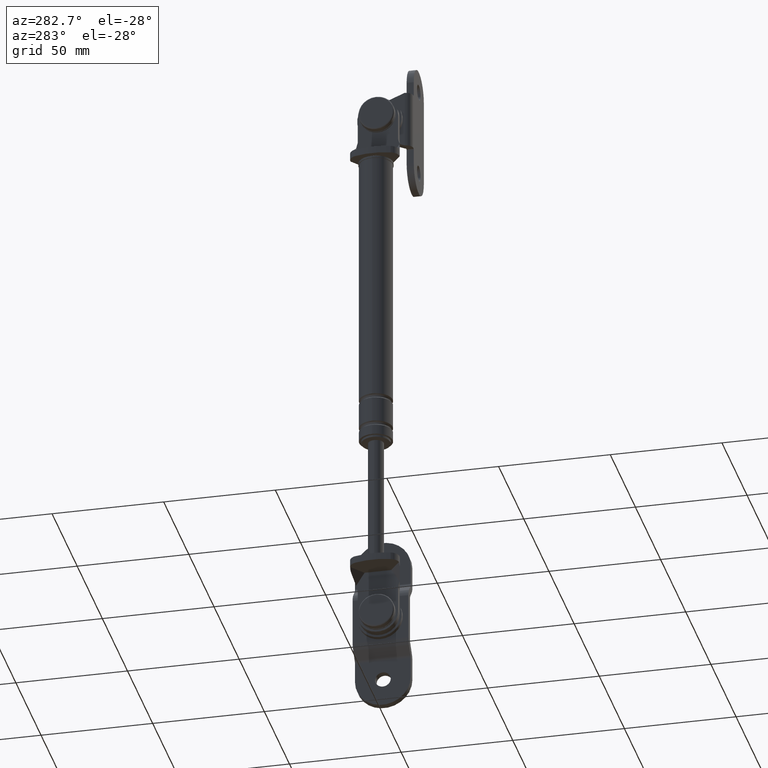
[diagram: clean part render]
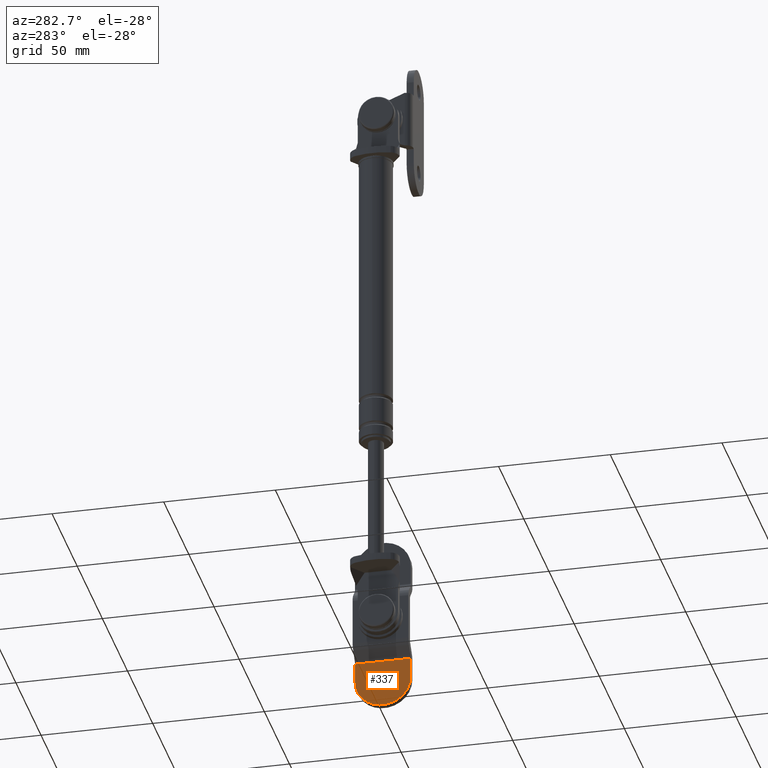
[diagram: same view with one face highlighted and labeled with its STEP entity id]
A machine part, auxiliary view. The second image highlights one B-rep face of the part: STEP entity #337.
In plain terms, the highlighted planar face has unit normal (1, 0, 0).
Its self-contained STEP definition (entity closure, byte-faithful):
#337=ADVANCED_FACE('',(#604,#605),#603,.F.);
#603=PLANE('',#2004);
#604=FACE_OUTER_BOUND('',#2005,.T.);
#605=FACE_BOUND('',#2006,.T.);
#2001=CARTESIAN_POINT('',(1.11590039666E+002,-1.60000000000E+000,1.77258453631E+002));
#2002=DIRECTION('',(0.00000000000E+000,-1.00000000000E+000,0.00000000000E+000));
#2003=DIRECTION('',(0.00000000000E+000,0.00000000000E+000,-1.00000000000E+000));
#2004=AXIS2_PLACEMENT_3D('',#2001,#2002,#2003);
#2005=EDGE_LOOP('',(#3038,#3039,#3040,#3041));
#2006=EDGE_LOOP('',(#3042,#3043));
#3038=ORIENTED_EDGE('',*,*,#3724,.F.);
#3039=ORIENTED_EDGE('',*,*,#3725,.T.);
#3040=ORIENTED_EDGE('',*,*,#3726,.F.);
#3041=ORIENTED_EDGE('',*,*,#3727,.F.);
#3042=ORIENTED_EDGE('',*,*,#3728,.T.);
#3043=ORIENTED_EDGE('',*,*,#3729,.T.);
#3724=EDGE_CURVE('',#4251,#4252,#4253,.T.);
#3725=EDGE_CURVE('',#4251,#4259,#4260,.T.);
#3726=EDGE_CURVE('',#4266,#4259,#4267,.T.);
#3727=EDGE_CURVE('',#4252,#4266,#4273,.T.);
#3728=EDGE_CURVE('',#4279,#4280,#4281,.T.);
#3729=EDGE_CURVE('',#4280,#4279,#4287,.T.);
#4251=VERTEX_POINT('',#6530);
#4252=VERTEX_POINT('',#6531);
#4253=CIRCLE('',#6535,1.25000000000E+001);
#4259=VERTEX_POINT('',#6536);
#4260=LINE('',#6537,#6538);
#4266=VERTEX_POINT('',#6540);
#4267=LINE('',#6541,#6542);
#4273=LINE('',#6544,#6545);
#4279=VERTEX_POINT('',#6547);
#4280=VERTEX_POINT('',#6548);
#4281=CIRCLE('',#6552,3.50000000000E+000);
#4287=CIRCLE('',#6556,3.50000000000E+000);
#6530=CARTESIAN_POINT('',(1.22748274395E+002,-1.60000000000E+000,1.49758453631E+002));
#6531=CARTESIAN_POINT('',(1.22748274395E+002,-1.60000000000E+000,1.74758453631E+002));
#6532=CARTESIAN_POINT('',(1.22748274395E+002,-1.60000000000E+000,1.62258453631E+002));
#6533=DIRECTION('',(0.00000000000E+000,-1.00000000000E+000,0.00000000000E+000));
#6534=DIRECTION('',(-0.00000000000E+000,-0.00000000000E+000,-1.00000000000E+000));
#6535=AXIS2_PLACEMENT_3D('',#6532,#6533,#6534);
#6536=CARTESIAN_POINT('',(1.13740788278E+002,-1.60000000000E+000,1.49758453631E+002));
#6537=CARTESIAN_POINT('',(1.22748274395E+002,-1.60000000000E+000,1.49758453631E+002));
#6538=VECTOR('',#6539,9.00748611743E+000);
#6539=DIRECTION('',(-1.00000000000E+000,0.00000000000E+000,0.00000000000E+000));
#6540=CARTESIAN_POINT('',(1.13740788278E+002,-1.60000000000E+000,1.74758453631E+002));
#6541=CARTESIAN_POINT('',(1.13740788278E+002,-1.60000000000E+000,1.74758453631E+002));
#6542=VECTOR('',#6543,2.50000000000E+001);
#6543=DIRECTION('',(0.00000000000E+000,0.00000000000E+000,-1.00000000000E+000));
#6544=CARTESIAN_POINT('',(1.22748274395E+002,-1.60000000000E+000,1.74758453631E+002));
#6545=VECTOR('',#6546,9.00748611743E+000);
#6546=DIRECTION('',(-1.00000000000E+000,0.00000000000E+000,0.00000000000E+000));
#6547=CARTESIAN_POINT('',(1.22748274395E+002,-1.60000000000E+000,1.65758453631E+002));
#6548=CARTESIAN_POINT('',(1.22748274395E+002,-1.60000000000E+000,1.58758453631E+002));
#6549=CARTESIAN_POINT('',(1.22748274395E+002,-1.60000000000E+000,1.62258453631E+002));
#6550=DIRECTION('',(-0.00000000000E+000,-1.00000000000E+000,0.00000000000E+000));
#6551=DIRECTION('',(-1.22460635382E-016,0.00000000000E+000,1.00000000000E+000));
#6552=AXIS2_PLACEMENT_3D('',#6549,#6550,#6551);
#6553=CARTESIAN_POINT('',(1.22748274395E+002,-1.60000000000E+000,1.62258453631E+002));
#6554=DIRECTION('',(-0.00000000000E+000,-1.00000000000E+000,0.00000000000E+000));
#6555=DIRECTION('',(-1.22460635382E-016,0.00000000000E+000,1.00000000000E+000));
#6556=AXIS2_PLACEMENT_3D('',#6553,#6554,#6555);